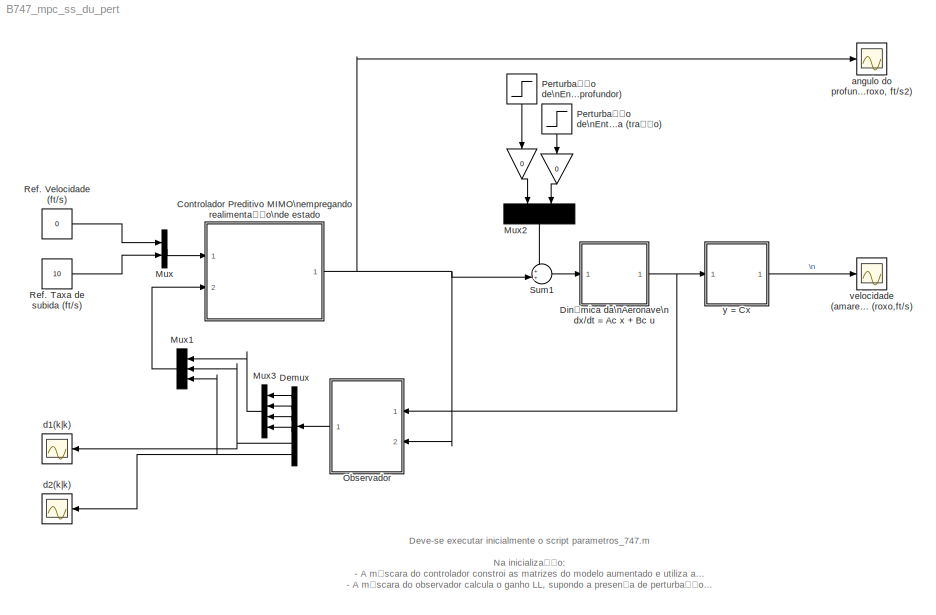
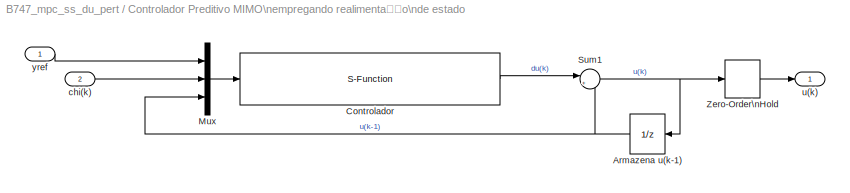
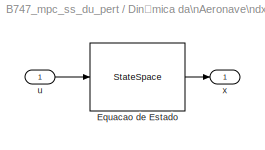
MODEL B747_mpc_ss_du_pert
KIND model
BLOCK [Gain]  
  Gain = 0
  OutDataTypeStr = Inherit: Inherit via internal rule
  ParamDataTypeStr = Inherit: Inherit via internal rule
  SID = 105
  SaturateOnIntegerOverflow = off
BLOCK [Gain]   
  Gain = 0
  OutDataTypeStr = Inherit: Inherit via internal rule
  ParamDataTypeStr = Inherit: Inherit via internal rule
  SID = 106
  SaturateOnIntegerOverflow = off
BLOCK [SubSystem] Controlador Preditivo MIMO\nempregando realimentação\nde estado
  FunctionWithSeparateData = off
  MaskCallbackString = |||||||
  MaskEnableString = on,on,on,on,on,on,on,on
  MaskHideContents = off
  MaskIconFrame = on
  MaskIconOpaque = on
  MaskIconRotate = none
  MaskIconUnits = autoscale
  MaskInitialization = nold = size(A,1);\npold = size(B,2);\nqold = size(C,1);\nAb = [A B ; zeros(pold,nold) eye(pold)];\nBb = [B;zeros(pold,pold)];\nCb = [C zeros(qold,pold)];\n\n[KMPC,Phi] = matrizes_ss_du_mimo(Ab,Bb,Cb,N,M,mu,rho);\nn = size(Ab,1);\np = size(Bb,2);\nq = size(Cb,1);\n
  MaskPortRotate = default
  MaskPromptString = Pesos dos controles rho (p x 1)|Pesos das saídas mu (q x 1)|Horizonte de Predição (N)|Horizonte de Controle (M)|Matriz A (n x n)|Matriz B (n x p)|Matriz C (q x n)|Periodo de amostragem
  MaskStyleString = edit,edit,edit,edit,edit,edit,edit,edit
  MaskToolTipString = on,on,on,on,on,on,on,on
  MaskTunableValueString = on,on,on,on,on,on,on,on
  MaskValueString = [1;1]|[1;1]|10|5|A|B|C|T
  MaskVariables = rho=@1;mu=@2;N=@3;M=@4;A=@5;B=@6;C=@7;T=@8;
  MaskVisibilityString = on,on,on,on,on,on,on,on
  MinAlgLoopOccurrences = off
  Opaque = off
  Ports = [2, 1]
  PropExecContextOutsideSubsystem = off
  RTWSystemCode = Auto
  RequestExecContextInheritance = off
  SID = 1
BLOCK [UnitDelay] Controlador Preditivo MIMO\nempregando realimentação\nde estado/Armazena u(k-1)
  SID = 4
  SampleTime = T
BLOCK [S-Function] Controlador Preditivo MIMO\nempregando realimentação\nde estado/Controlador
  EnableBusSupport = off
  FunctionName = mpc_ss_du_mimo
  Parameters = KMPC,Phi,p,q,n,N,T
  Ports = [1, 1]
  SID = 5
BLOCK [Mux] Controlador Preditivo MIMO\nempregando realimentação\nde estado/Mux
  DisplayOption = bar
  Inputs = 3
  Ports = [3, 1]
  SID = 6
BLOCK [Sum] Controlador Preditivo MIMO\nempregando realimentação\nde estado/Sum1
  IconShape = round
  Inputs = |++
  Ports = [2, 1]
  SID = 7
BLOCK [ZeroOrderHold] Controlador Preditivo MIMO\nempregando realimentação\nde estado/Zero-Order\nHold
  SID = 8
  SampleTime = T
BLOCK [Inport] Controlador Preditivo MIMO\nempregando realimentação\nde estado/chi(k)
  IconDisplay = Port number
  Port = 2
  SID = 3
BLOCK [Outport] Controlador Preditivo MIMO\nempregando realimentação\nde estado/u(k)
  IconDisplay = Port number
  SID = 9
BLOCK [Inport] Controlador Preditivo MIMO\nempregando realimentação\nde estado/yref
  IconDisplay = Port number
  SID = 2
BLOCK [Demux] Demux
  Outputs = 6
  Ports = [1, 6]
  SID = 61
BLOCK [SubSystem] Dinâmica da\nAeronave\ndx//dt = Ac x + Bc u
  FunctionWithSeparateData = off
  MaskHideContents = off
  MinAlgLoopOccurrences = off
  Opaque = off
  Ports = [1, 1]
  PropExecContextOutsideSubsystem = off
  RTWSystemCode = Auto
  RequestExecContextInheritance = off
  SID = 11
BLOCK [StateSpace] Dinâmica da\nAeronave\ndx//dt = Ac x + Bc u/Equacao de Estado
  A = Ac
  B = Bc
  C = eye(size(A,1),size(A,1))
  D = zeros(size(A,1),size(B,2))
  SID = 13
  X0 = zeros(size(A,1),1)
BLOCK [Inport] Dinâmica da\nAeronave\ndx//dt = Ac x + Bc u/u
  IconDisplay = Port number
  SID = 12
BLOCK [Outport] Dinâmica da\nAeronave\ndx//dt = Ac x + Bc u/x
  IconDisplay = Port number
  SID = 14
BLOCK [Mux] Mux
  DisplayOption = bar
  Inputs = 2
  Ports = [2, 1]
  SID = 15
BLOCK [Mux] Mux1
  DisplayOption = bar
  Inputs = 3
  Ports = [3, 1]
  SID = 62
BLOCK [Mux] Mux2
  DisplayOption = bar
  Inputs = 2
  Ports = [2, 1]
  SID = 107
BLOCK [Mux] Mux3
  DisplayOption = bar
  Ports = [4, 1]
  SID = 78
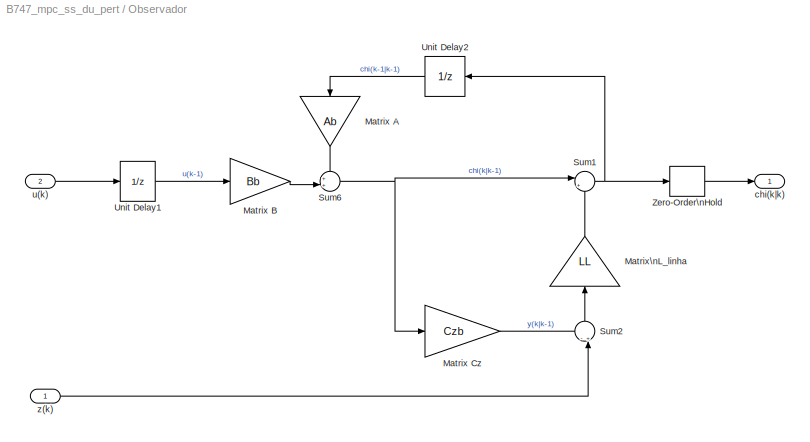
BLOCK [SubSystem] Observador
  FunctionWithSeparateData = off
  MaskCallbackString = ||||
  MaskEnableString = on,on,on,on,on
  MaskHideContents = off
  MaskIconFrame = on
  MaskIconOpaque = on
  MaskIconRotate = none
  MaskIconUnits = autoscale
  MaskInitialization = n = size(A,1);\np = size(B,2);\nnz = size(Cz,1);\nAb = [A B ; zeros(p,n) eye(p)];\nBb = [B;zeros(p,p)];\nCzb = [Cz zeros(nz,p)];\nL = place(Ab',Czb',poles)';\nLL = inv(Ab)*L;
  MaskPortRotate = default
  MaskPromptString = Matriz A|Matriz B|Matriz Cz|Periodo de amostragem|Pólos para a dinâmica do erro de estimacao
  MaskStyleString = edit,edit,edit,edit,edit
  MaskToolTipString = on,on,on,on,on
  MaskTunableValueString = on,on,on,on,on
  MaskValueString = A|B|eye(4)|T|[0.5,0.51,0.52,0.53,0.54,0.55]
  MaskVariables = A=@1;B=@2;Cz=@3;T=@4;poles=@5;
  MaskVisibilityString = on,on,on,on,on
  MinAlgLoopOccurrences = off
  Opaque = off
  Ports = [2, 1]
  PropExecContextOutsideSubsystem = off
  RTWSystemCode = Auto
  RequestExecContextInheritance = off
  SID = 48
BLOCK [Gain] Observador/Matrix A
  Gain = Ab
  Multiplication = Matrix(K*u)
  SID = 68
BLOCK [Gain] Observador/Matrix B
  Gain = Bb
  Multiplication = Matrix(K*u)
  SID = 69
BLOCK [Gain] Observador/Matrix Cz
  Gain = Czb
  Multiplication = Matrix(K*u)
  SID = 70
BLOCK [Gain] Observador/Matrix\nL_linha
  Gain = LL
  Multiplication = Matrix(K*u)
  SID = 67
BLOCK [Sum] Observador/Sum1
  IconShape = round
  InputSameDT = off
  Inputs = |++
  OutDataTypeStr = Inherit: Inherit via internal rule
  Ports = [2, 1]
  SID = 71
BLOCK [Sum] Observador/Sum2
  IconShape = round
  InputSameDT = off
  Inputs = -+|
  OutDataTypeStr = Inherit: Inherit via internal rule
  Ports = [2, 1]
  SID = 72
BLOCK [Sum] Observador/Sum6
  IconShape = round
  InputSameDT = off
  Inputs = ++|
  OutDataTypeStr = Inherit: Inherit via internal rule
  Ports = [2, 1]
  SID = 73
BLOCK [UnitDelay] Observador/Unit Delay1
  SID = 74
  SampleTime = T
BLOCK [UnitDelay] Observador/Unit Delay2
  SID = 75
  SampleTime = T
BLOCK [ZeroOrderHold] Observador/Zero-Order\nHold
  SID = 77
  SampleTime = T
BLOCK [Outport] Observador/chi(k|k)
  IconDisplay = Port number
  SID = 76
BLOCK [Inport] Observador/u(k)
  IconDisplay = Port number
  Port = 2
  SID = 66
BLOCK [Inport] Observador/z(k)
  IconDisplay = Port number
  SID = 65
BLOCK [Step] Perturbação de\nEntrada (profundor)
  After = 2
  SID = 108
  SampleTime = 0
  Time = 4
BLOCK [Step] Perturbação de\nEntrada (tração)
  After = 2
  SID = 109
  SampleTime = 0
  Time = 8
BLOCK [Constant] Ref. Taxa de subida (ft//s)
  SID = 36
  Value = 10
BLOCK [Constant] Ref. Velocidade (ft//s)
  SID = 37
  Value = 0
BLOCK [Sum] Sum1
  IconShape = round
  InputSameDT = off
  Inputs = ++|
  OutDataTypeStr = Inherit: Inherit via internal rule
  Ports = [2, 1]
  SID = 38
BLOCK [Scope] angulo do profundor (amarelo, crad)\ntração específica (roxo, ft//s2)
  Floating = off
  LimitDataPoints = off
  NumInputPorts = 1
  Ports = [1]
  SID = 40
  SaveName = y1
  ShowLegends = off
  TimeRange = 10
  YMax = 3
  YMin = -6
BLOCK [Scope] d1(k|k)
  Floating = off
  LimitDataPoints = off
  NumInputPorts = 1
  Ports = [1]
  SID = 63
  SaveName = y2
  ShowLegends = off
  TimeRange = 10
  YMax = 2
  YMin = -0.5
  ZoomMode = yonly
BLOCK [Scope] d2(k|k)
  Floating = off
  LimitDataPoints = off
  NumInputPorts = 1
  Ports = [1]
  SID = 64
  SaveName = y3
  ShowLegends = off
  TimeRange = 10
  YMax = 2
  YMin = -0.5
BLOCK [Scope] velocidade (amarelo,ft//s),\ntaxa de subida (roxo,ft//s)
  Floating = off
  LimitDataPoints = off
  NumInputPorts = 1
  Ports = [1]
  SID = 43
  SaveName = y
  ShowLegends = off
  TimeRange = 10
  YMax = 12
  YMin = -2
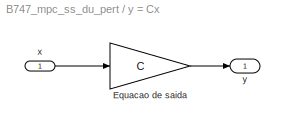
BLOCK [SubSystem] y = Cx
  FunctionWithSeparateData = off
  MaskHideContents = off
  MinAlgLoopOccurrences = off
  Opaque = off
  Ports = [1, 1]
  PropExecContextOutsideSubsystem = off
  RTWSystemCode = Auto
  RequestExecContextInheritance = off
  SID = 44
BLOCK [Gain] y = Cx/Equacao de saida
  Gain = C
  Multiplication = Matrix(K*u)
  SID = 46
BLOCK [Inport] y = Cx/x
  IconDisplay = Port number
  SID = 45
BLOCK [Outport] y = Cx/y
  IconDisplay = Port number
  SID = 47
ANNOTATION (root): Deve-se executar inicialmente o script parametros_747.m\n\nNa inicialização:\n- A máscara do controlador constroi as matrizes do modelo aumentado e utiliza a função matrizes_ss_du_mimo.m\n- A máscara do observador calcula o ganho LL, supondo a presença de perturbação de entrada
LINE   :1 -> Mux2:1
LINE  :1 -> Mux2:2
NET Controlador Preditivo MIMO\nempregando realimentação\nde estado/Armazena u(k-1):1 -> Controlador Preditivo MIMO\nempregando realimentação\nde estado/Mux:3, Controlador Preditivo MIMO\nempregando realimentação\nde estado/Sum1:2
LINE Controlador Preditivo MIMO\nempregando realimentação\nde estado/Controlador:1 -> Controlador Preditivo MIMO\nempregando realimentação\nde estado/Sum1:1
LINE Controlador Preditivo MIMO\nempregando realimentação\nde estado/Mux:1 -> Controlador Preditivo MIMO\nempregando realimentação\nde estado/Controlador:1
NET Controlador Preditivo MIMO\nempregando realimentação\nde estado/Sum1:1 -> Controlador Preditivo MIMO\nempregando realimentação\nde estado/Armazena u(k-1):1, Controlador Preditivo MIMO\nempregando realimentação\nde estado/Zero-Order\nHold:1
LINE Controlador Preditivo MIMO\nempregando realimentação\nde estado/Zero-Order\nHold:1 -> Controlador Preditivo MIMO\nempregando realimentação\nde estado/u(k):1
LINE Controlador Preditivo MIMO\nempregando realimentação\nde estado/chi(k):1 -> Controlador Preditivo MIMO\nempregando realimentação\nde estado/Mux:2
LINE Controlador Preditivo MIMO\nempregando realimentação\nde estado/yref:1 -> Controlador Preditivo MIMO\nempregando realimentação\nde estado/Mux:1
NET Controlador Preditivo MIMO\nempregando realimentação\nde estado:1 -> Observador:2, Sum1:2, angulo do profundor (amarelo, crad)\ntração específica (roxo, ft//s2):1
LINE Demux:1 -> Mux3:1
LINE Demux:2 -> Mux3:2
LINE Demux:3 -> Mux3:3
LINE Demux:4 -> Mux3:4
NET Demux:5 -> Mux1:2, d1(k|k):1
NET Demux:6 -> Mux1:3, d2(k|k):1
LINE Dinâmica da\nAeronave\ndx//dt = Ac x + Bc u/Equacao de Estado:1 -> Dinâmica da\nAeronave\ndx//dt = Ac x + Bc u/x:1
LINE Dinâmica da\nAeronave\ndx//dt = Ac x + Bc u/u:1 -> Dinâmica da\nAeronave\ndx//dt = Ac x + Bc u/Equacao de Estado:1
NET Dinâmica da\nAeronave\ndx//dt = Ac x + Bc u:1 -> Observador:1, y = Cx:1
LINE Mux1:1 -> Controlador Preditivo MIMO\nempregando realimentação\nde estado:2
LINE Mux2:1 -> Sum1:1
LINE Mux3:1 -> Mux1:1
LINE Mux:1 -> Controlador Preditivo MIMO\nempregando realimentação\nde estado:1
LINE Observador/Matrix A:1 -> Observador/Sum6:1
LINE Observador/Matrix B:1 -> Observador/Sum6:2
LINE Observador/Matrix Cz:1 -> Observador/Sum2:1
LINE Observador/Matrix\nL_linha:1 -> Observador/Sum1:2
NET Observador/Sum1:1 -> Observador/Unit Delay2:1, Observador/Zero-Order\nHold:1
LINE Observador/Sum2:1 -> Observador/Matrix\nL_linha:1
NET Observador/Sum6:1 -> Observador/Matrix Cz:1, Observador/Sum1:1
LINE Observador/Unit Delay1:1 -> Observador/Matrix B:1
LINE Observador/Unit Delay2:1 -> Observador/Matrix A:1
LINE Observador/Zero-Order\nHold:1 -> Observador/chi(k|k):1
LINE Observador/u(k):1 -> Observador/Unit Delay1:1
LINE Observador/z(k):1 -> Observador/Sum2:2
LINE Observador:1 -> Demux:1
LINE Perturbação de\nEntrada (profundor):1 ->   :1
LINE Perturbação de\nEntrada (tração):1 ->  :1
LINE Ref. Taxa de subida (ft//s):1 -> Mux:2
LINE Ref. Velocidade (ft//s):1 -> Mux:1
LINE Sum1:1 -> Dinâmica da\nAeronave\ndx//dt = Ac x + Bc u:1
LINE y = Cx/Equacao de saida:1 -> y = Cx/y:1
LINE y = Cx/x:1 -> y = Cx/Equacao de saida:1
LINE y = Cx:1 -> velocidade (amarelo,ft//s),\ntaxa de subida (roxo,ft//s):1
note: NET lines group one-source signal fan-out (src -> all destinations, sorted); 1:1 wires keep LINE
